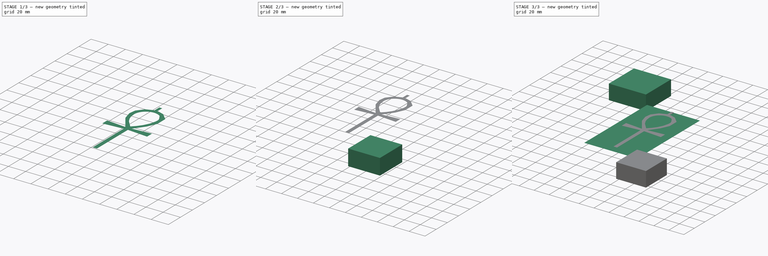
[diagram: build sequence overview — one tinted view per stage of 3, left to right]
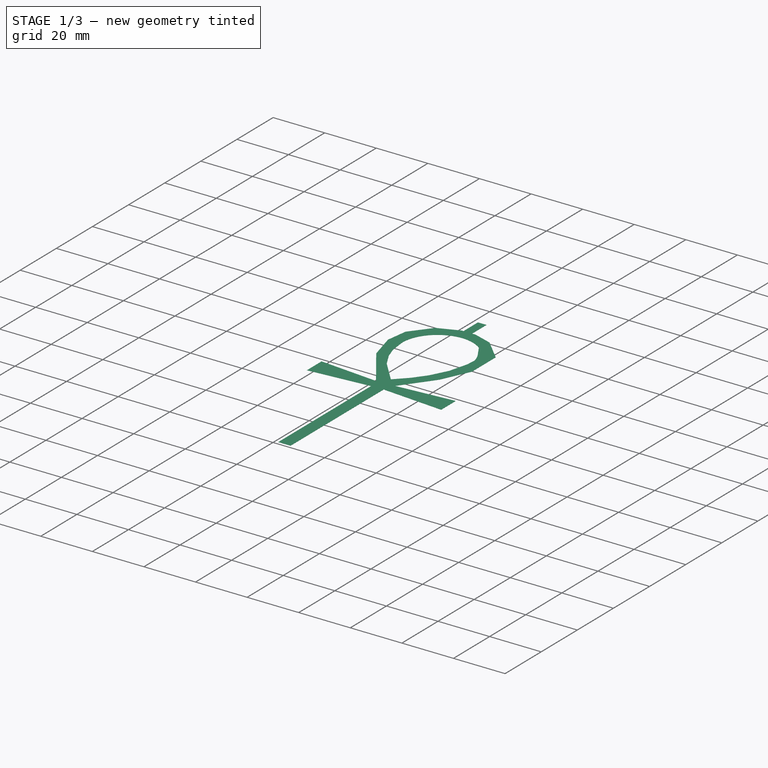
[diagram: stage 1 of 3 — iso view after this stage's code; geometry added in this stage tinted green]
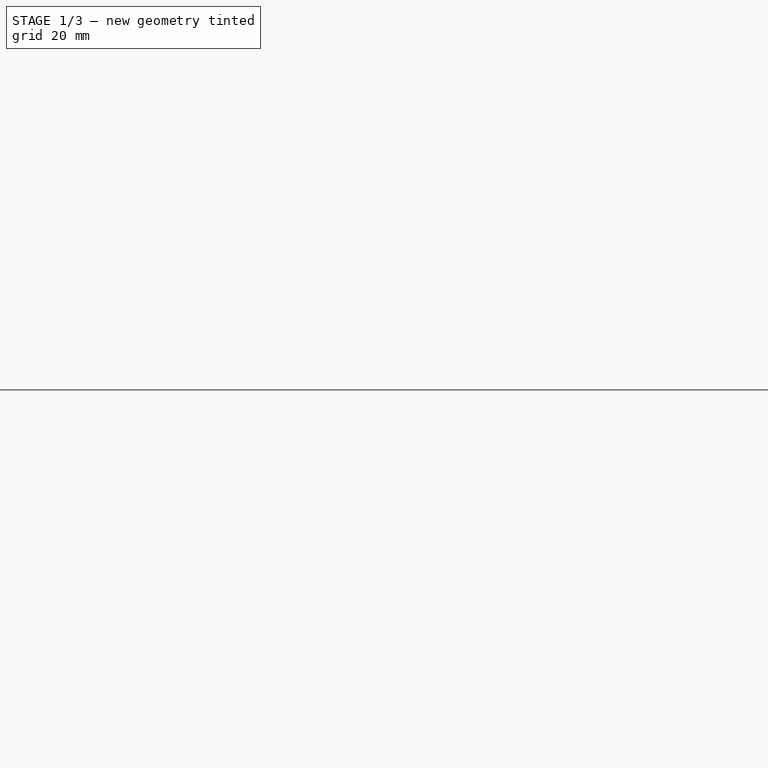
[diagram: stage 1 of 3 — front view after this stage's code; geometry added in this stage tinted green]
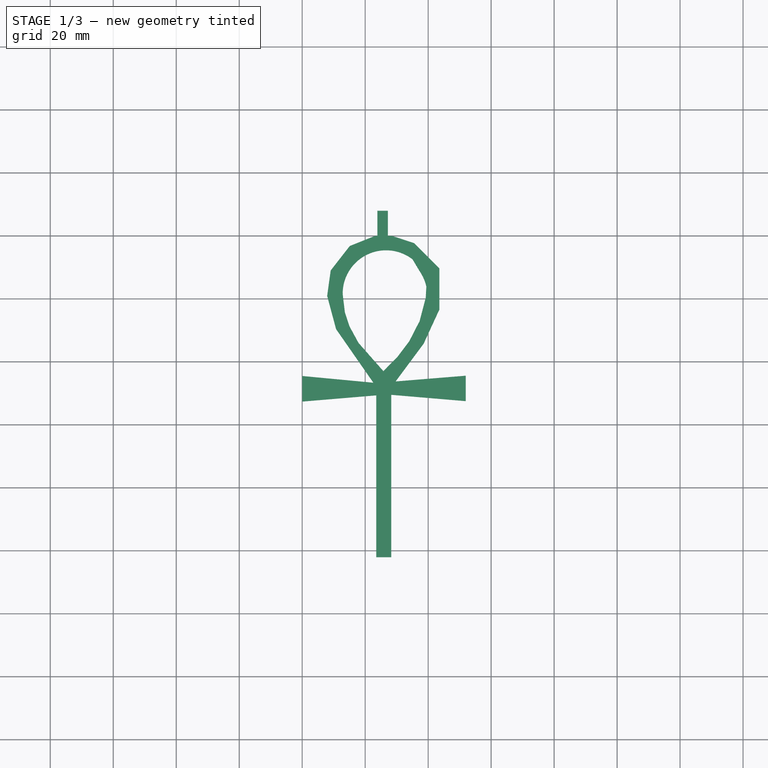
[diagram: stage 1 of 3 — top view after this stage's code; geometry added in this stage tinted green]
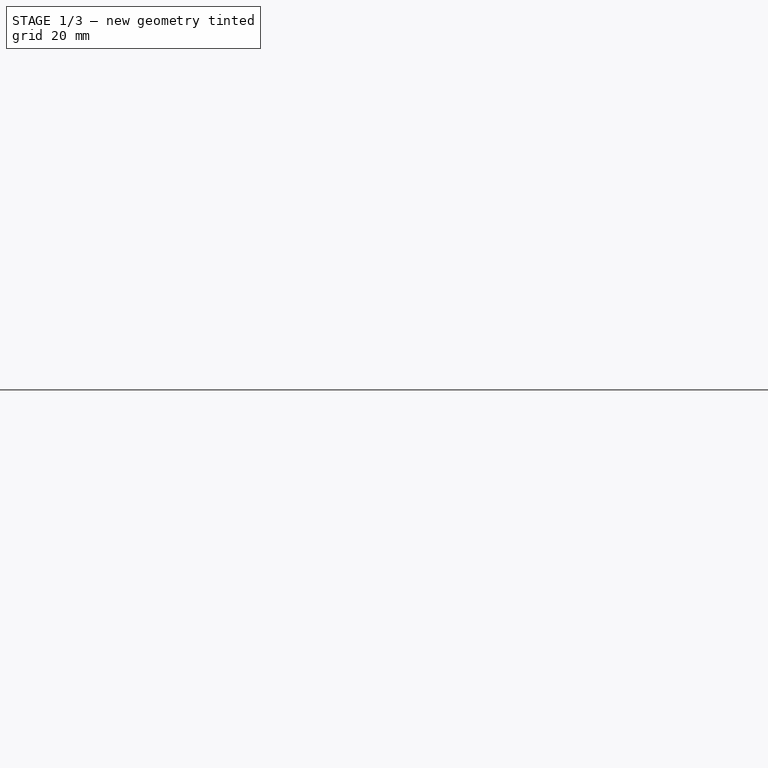
[diagram: stage 1 of 3 — right view after this stage's code; geometry added in this stage tinted green]
FCSTD DOCUMENT  (FreeCAD 0.18R16131 (Git))
Label: RhaCross
License: All rights reserved
LicenseURL: http://en.wikipedia.org/wiki/All_rights_reserved
objects: Sketcher::SketchObject×8, Part::Extrusion×7, Part::Feature×2, Part::Cut×1, Part::MultiFuse×1
note: 19 computed .brp shape members not serialized (recipe doc carries the construction recipe); baked Part::Feature solids carry a one-line shape summary decoded from their .brp

FEATURE [Sketcher::SketchObject] Sketch001
  sketch-geometry (4):
    g0: LineSegment StartX=-9.94408 StartY=9.92968 StartZ=0 EndX=60.5151 EndY=9.92968 EndZ=0
    g1: LineSegment StartX=60.5151 StartY=9.92968 StartZ=0 EndX=60.5151 EndY=-110.47 EndZ=0
    g2: LineSegment StartX=60.5151 StartY=-110.47 StartZ=0 EndX=-9.94408 EndY=-110.47 EndZ=0
    g3: LineSegment StartX=-9.94408 StartY=-110.47 StartZ=0 EndX=-9.94408 EndY=9.92968 EndZ=0
  constraints (8):
    c: Coincident(g0,g1)
    c: Coincident(g1,g2)
    c: Coincident(g2,g3)
    c: Coincident(g3,g0)
    c: Horizontal(g0)
    c: Horizontal(g2)
    c: Vertical(g1)
    c: Vertical(g3)
FEATURE [Part::Extrusion] Extrude001  label="substrate layer"
  Base = -> Sketch001
  Dir = (0,0,1)
  DirMode = 2
  FaceMakerClass = Part::FaceMakerBullseye
  LengthFwd = 0
  LengthRev = 1.5
  Solid = true
  Symmetric = false
FEATURE [Part::Extrusion] Extrude003  label="inPort"
  Base = -> Sketch
  Dir = (0,0,1)
  DirMode = 2
  FaceMakerClass = Part::FaceMakerBullseye
  LengthFwd = 0.035
  LengthRev = 0
  Solid = true
  Symmetric = false
FEATURE [Part::Feature] path4529001
  shape: bbox 51.85 x 102.3 x 2e-07 mm, 1 faces, 0 solids (baked)
FEATURE [Part::Feature] path4529002
  shape: bbox 26.77 x 38.2 x 2e-07 mm, 1 faces, 0 solids (baked)
FEATURE [Part::Cut] Cut  label="cross symbol"
  Base = -> path4529001
  Tool = -> path4529002
FEATURE [Sketcher::SketchObject] Sketch006
  sketch-geometry (35):
    g0: LineSegment StartX=23.4984 StartY=-102.062 StartZ=0 EndX=28.2739 EndY=-102.062 EndZ=0
    g1: LineSegment StartX=28.2739 StartY=-102.062 StartZ=0 EndX=28.2739 EndY=-50.4864 EndZ=0
    g2: LineSegment StartX=28.2739 StartY=-50.4864 StartZ=0 EndX=51.9493 EndY=-52.4985 EndZ=0
    g3: LineSegment StartX=51.9493 StartY=-52.4985 StartZ=0 EndX=51.9493 EndY=-44.4101 EndZ=0
    g4: LineSegment StartX=51.9493 StartY=-44.4101 StartZ=0 EndX=29.666 EndY=-46.2314 EndZ=0
    g5: LineSegment StartX=29.666 StartY=-46.2314 StartZ=0 EndX=38.5644 EndY=-34.2466 EndZ=0
    g6: LineSegment StartX=38.5644 StartY=-34.2466 StartZ=0 EndX=43.546 EndY=-23.4263 EndZ=0
    g7: LineSegment StartX=43.546 StartY=-23.4263 StartZ=0 EndX=43.546 EndY=-10.3028 EndZ=0
    g8: LineSegment StartX=43.546 StartY=-10.3028 StartZ=0 EndX=35.5647 EndY=-2.32148 EndZ=0
    g9: LineSegment StartX=35.5647 StartY=-2.32148 StartZ=0 EndX=28.5437 EndY=0 EndZ=0
    g10: LineSegment StartX=28.5437 StartY=0 StartZ=0 EndX=23.1336 EndY=0 EndZ=0
    g11: LineSegment StartX=23.1336 StartY=0 StartZ=0 EndX=15.0988 EndY=-3.2186 EndZ=0
    g12: LineSegment StartX=15.0988 StartY=-3.2186 StartZ=0 EndX=9.04586 EndY=-10.9856 EndZ=0
    g13: LineSegment StartX=9.04586 StartY=-10.9856 StartZ=0 EndX=7.92099 EndY=-19.074 EndZ=0
    g14: LineSegment StartX=7.92099 StartY=-19.074 StartZ=0 EndX=10.76 EndY=-29.6264 EndZ=0
    g15: LineSegment StartX=10.76 StartY=-29.6264 StartZ=0 EndX=22.5968 EndY=-46.6401 EndZ=0
    g16: LineSegment StartX=22.5968 StartY=-46.6401 StartZ=0 EndX=0 EndY=-44.4975 EndZ=0
    g17: LineSegment StartX=0 StartY=-44.4975 StartZ=0 EndX=0 EndY=-52.6394 EndZ=0
    g18: LineSegment StartX=0 StartY=-52.6394 StartZ=0 EndX=23.4984 EndY=-50.6659 EndZ=0
    g19: LineSegment StartX=23.4984 StartY=-50.6659 StartZ=0 EndX=23.4984 EndY=-102.062 EndZ=0
    g20: LineSegment StartX=12.9008 StartY=-18.8666 StartZ=0 EndX=13.548 EndY=-24.3062 EndZ=0
    g21: LineSegment StartX=13.548 StartY=-24.3062 StartZ=0 EndX=14.9943 EndY=-28.6986 EndZ=0
    g22: LineSegment StartX=14.9943 StartY=-28.6986 StartZ=0 EndX=17.8868 EndY=-34.0015 EndZ=0
    g23: LineSegment StartX=17.8868 StartY=-34.0015 StartZ=0 EndX=25.761 EndY=-42.947 EndZ=0
    g24: LineSegment StartX=25.761 StartY=-42.947 StartZ=0 EndX=30.3141 EndY=-38.3404 EndZ=0
    g25: LineSegment StartX=30.3141 StartY=-38.3404 StartZ=0 EndX=33.9565 EndY=-33.5195 EndZ=0
    g26: LineSegment StartX=33.9565 StartY=-33.5195 StartZ=0 EndX=37.2776 EndY=-27.0916 EndZ=0
    g27: LineSegment StartX=37.2776 StartY=-27.0916 StartZ=0 EndX=39.2215 EndY=-19.6805 EndZ=0
    g28: LineSegment StartX=39.2215 StartY=-19.6805 StartZ=0 EndX=39.3173 EndY=-17.9816 EndZ=0
    g29: ArcOfCircle CenterX=26.618 CenterY=-18.3604 CenterZ=0 NormalX=0 NormalY=0 NormalZ=1 AngleXU=0 Radius=13.7715 StartAngle=0.912129 EndAngle=3.11436
    g30: ArcOfCircle CenterX=25.9923 CenterY=-19.064 CenterZ=0 NormalX=0 NormalY=0 NormalZ=1 AngleXU=0 Radius=13.7437 StartAngle=0.214422 EndAngle=0.592394
    g31: LineSegment StartX=39.3173 StartY=-17.9816 StartZ=0 EndX=39.4212 EndY=-16.1396 EndZ=0
    g32: LineSegment StartX=35.9332 StartY=-8.95112 StartZ=0 EndX=37.3941 EndY=-11.3902 EndZ=0
    g33: LineSegment StartX=35.9332 StartY=-8.95112 StartZ=0 EndX=35.047 EndY=-7.46981 EndZ=0
    g34: LineSegment StartX=12.9008 StartY=-18.8666 StartZ=0 EndX=12.8517 EndY=-17.9854 EndZ=0
  constraints (45):
    c: Horizontal(g0)
    c: Coincident(g0,g1)
    c: Vertical(g1)
    c: Coincident(g1,g2)
    c: Coincident(g2,g3)
    c: Vertical(g3)
    c: Coincident(g3,g4)
    c: Coincident(g4,g5)
    c: Coincident(g5,g6)
    c: Coincident(g6,g7)
    c: Vertical(g7)
    c: Coincident(g7,g8)
    c: Coincident(g8,g9)
    c: Coincident(g9,g10)
    c: PointOnObject(g10,g-1)
    c: Horizontal(g10)
    c: Coincident(g10,g11)
    c: Coincident(g11,g12)
    c: Coincident(g12,g13)
    c: Coincident(g13,g14)
    c: Coincident(g14,g15)
    c: Coincident(g15,g16)
    c: PointOnObject(g16,g-2)
    c: Coincident(g16,g17)
    c: PointOnObject(g17,g-2)
    c: Coincident(g17,g18)
    c: Coincident(g18,g19)
    c: Coincident(g19,g0)
    c: Vertical(g19)
    c: Coincident(g20,g21)
    c: Coincident(g21,g22)
    c: Coincident(g22,g23)
    c: Coincident(g23,g24)
    c: Coincident(g24,g25)
    c: Coincident(g25,g26)
    c: Coincident(g26,g27)
    c: Coincident(g27,g28)
    c: PointOnObject(g30,g28)
    c: Coincident(g31,g28)
    c: Coincident(g31,g30)
    c: Coincident(g32,g30)
    c: Coincident(g33,g32)
    c: Coincident(g33,g29)
    c: Coincident(g34,g20)
    c: Coincident(g34,g29)
FEATURE [Part::Extrusion] Extrude  label="cross2"
  Base = -> Sketch006
  Dir = (0,0,1)
  DirMode = 2
  FaceMakerClass = Part::FaceMakerBullseye
  LengthFwd = 0.035
  LengthRev = 0
  Solid = true
  Symmetric = false
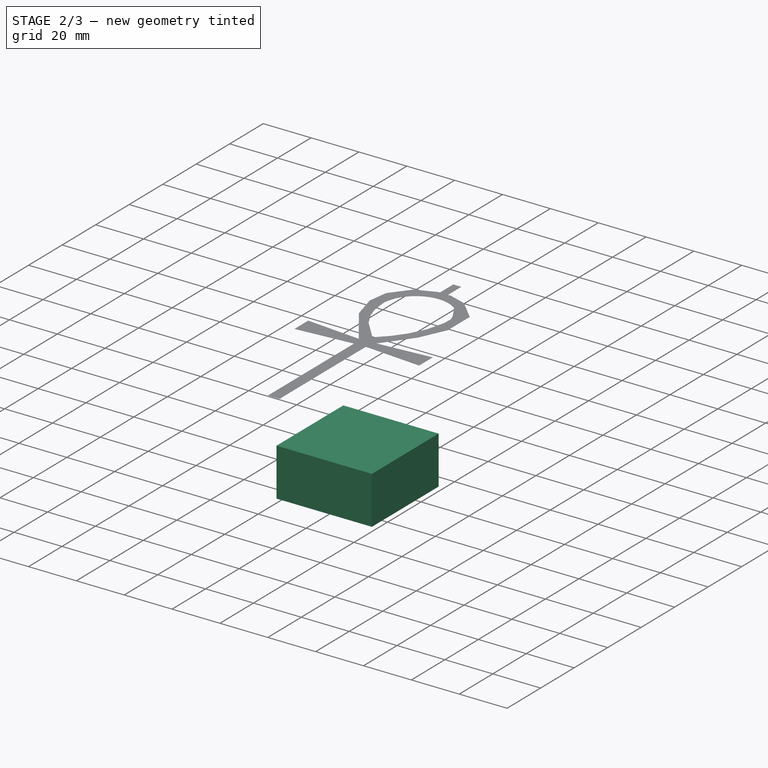
[diagram: stage 2 of 3 — iso view after this stage's code; geometry added in this stage tinted green]
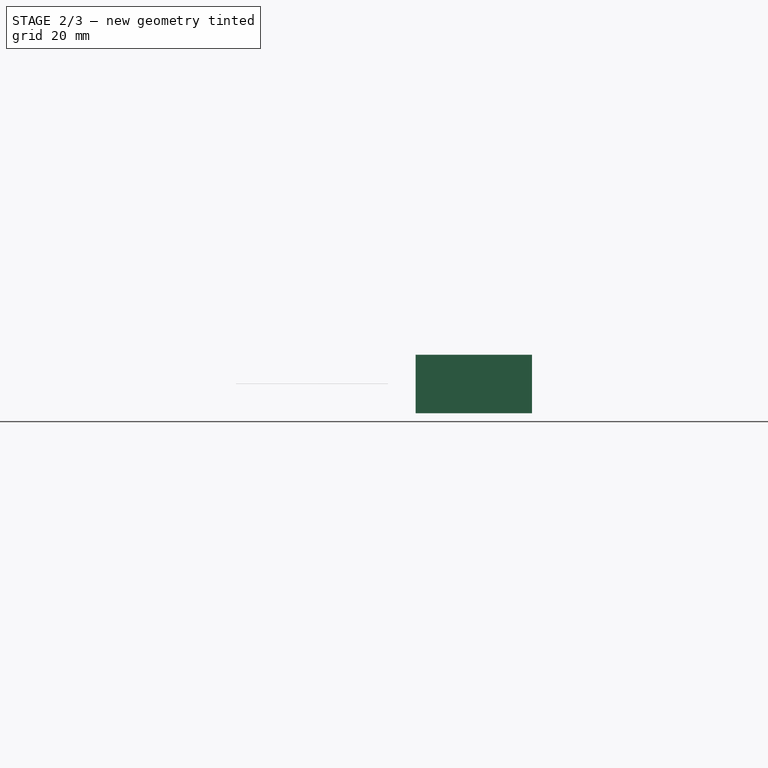
[diagram: stage 2 of 3 — front view after this stage's code; geometry added in this stage tinted green]
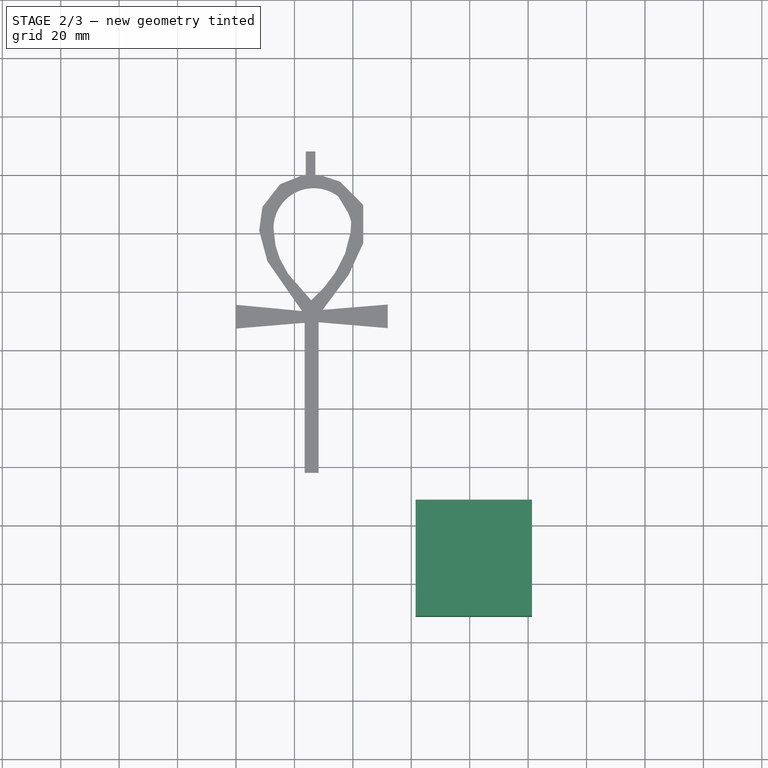
[diagram: stage 2 of 3 — top view after this stage's code; geometry added in this stage tinted green]
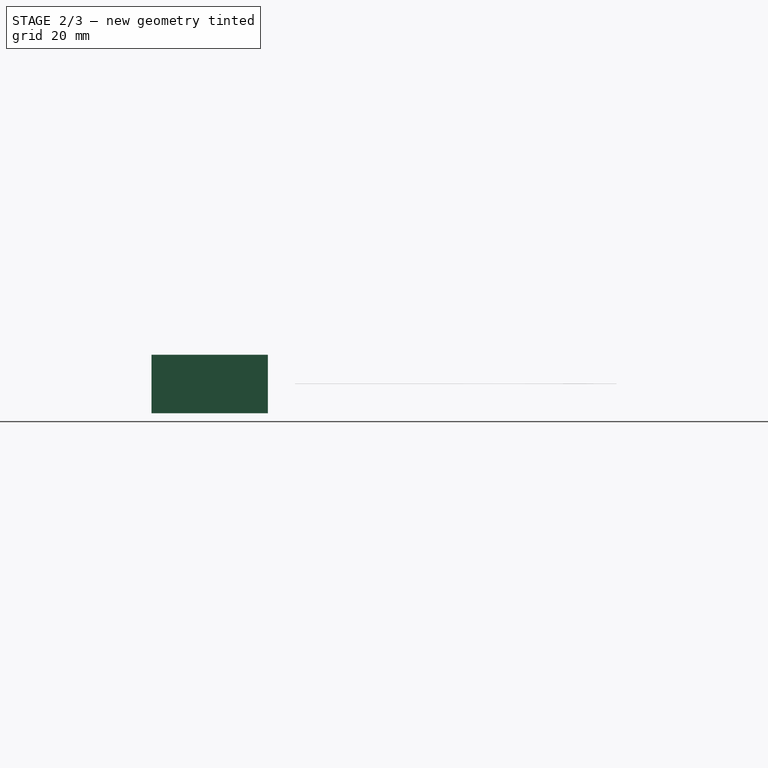
[diagram: stage 2 of 3 — right view after this stage's code; geometry added in this stage tinted green]
FEATURE [Sketcher::SketchObject] Sketch005
  Placement = pos=(0,0,-10) rot=(0,0,1;0rad)
  sketch-geometry (4):
    g0: LineSegment StartX=61.4883 StartY=-111.366 StartZ=0 EndX=101.325 EndY=-111.366 EndZ=0
    g1: LineSegment StartX=101.325 StartY=-111.366 StartZ=0 EndX=101.325 EndY=-151.203 EndZ=0
    g2: LineSegment StartX=101.325 StartY=-151.203 StartZ=0 EndX=61.4883 EndY=-151.203 EndZ=0
    g3: LineSegment StartX=61.4883 StartY=-151.203 StartZ=0 EndX=61.4883 EndY=-111.366 EndZ=0
  constraints (8):
    c: Coincident(g0,g1)
    c: Coincident(g1,g2)
    c: Coincident(g2,g3)
    c: Coincident(g3,g0)
    c: Horizontal(g0)
    c: Horizontal(g2)
    c: Vertical(g1)
    c: Vertical(g3)
FEATURE [Part::Extrusion] Extrude006  label="air2"
  Base = -> Sketch005
  Dir = (0,0,1)
  DirMode = 2
  FaceMakerClass = Part::FaceMakerBullseye
  LengthFwd = 20
  LengthRev = 0
  Solid = true
  Symmetric = false
FEATURE [Part::MultiFuse] Fusion  label="copper layer"
  Shapes = -> [Extrude,Extrude003]
FEATURE [Sketcher::SketchObject] Sketch007  label="dump field layer"
  Placement = pos=(0,0,2) rot=(0,0,1;0rad)
  sketch-geometry (4):
    g0: LineSegment StartX=-9.98383 StartY=9.48747 StartZ=0 EndX=60.4424 EndY=9.48747 EndZ=0
    g1: LineSegment StartX=60.4424 StartY=9.48747 StartZ=0 EndX=60.4424 EndY=-110.557 EndZ=0
    g2: LineSegment StartX=60.4424 StartY=-110.557 StartZ=0 EndX=-9.98383 EndY=-110.557 EndZ=0
    g3: LineSegment StartX=-9.98383 StartY=-110.557 StartZ=0 EndX=-9.98383 EndY=9.48747 EndZ=0
  constraints (8):
    c: Coincident(g0,g1)
    c: Coincident(g1,g2)
    c: Coincident(g2,g3)
    c: Coincident(g3,g0)
    c: Horizontal(g0)
    c: Horizontal(g2)
    c: Vertical(g1)
    c: Vertical(g3)
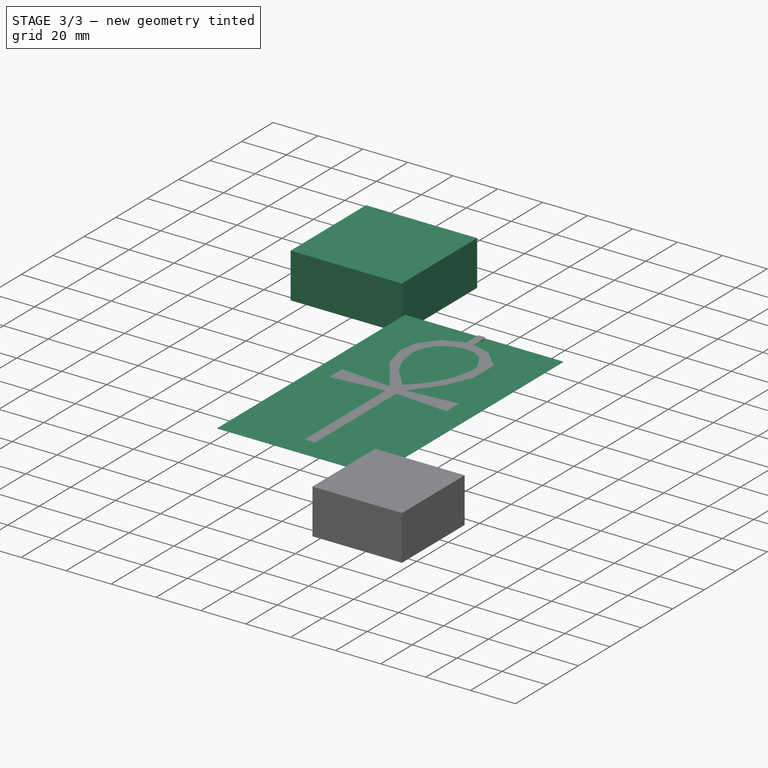
[diagram: stage 3 of 3 — iso view after this stage's code; geometry added in this stage tinted green]
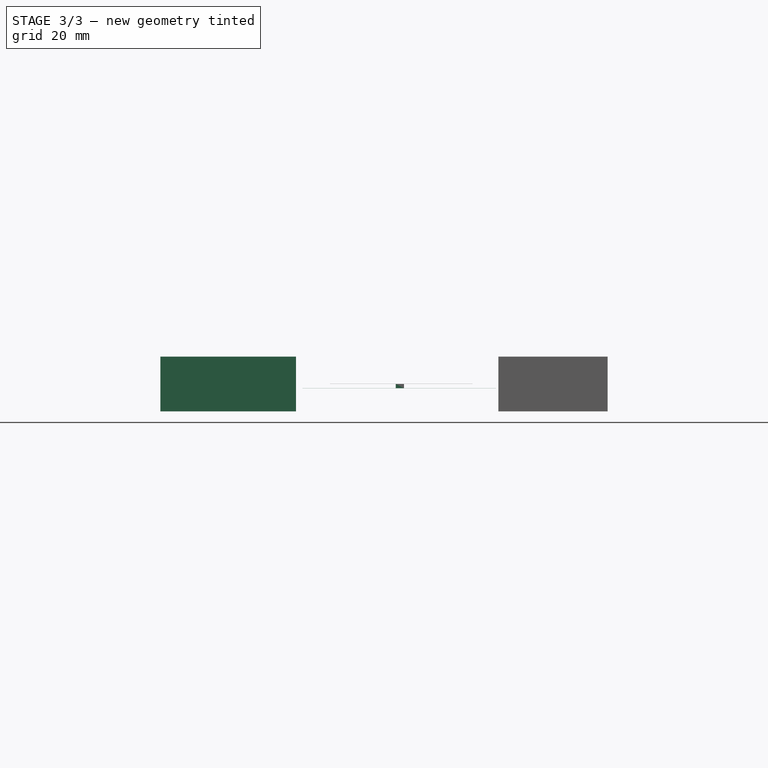
[diagram: stage 3 of 3 — front view after this stage's code; geometry added in this stage tinted green]
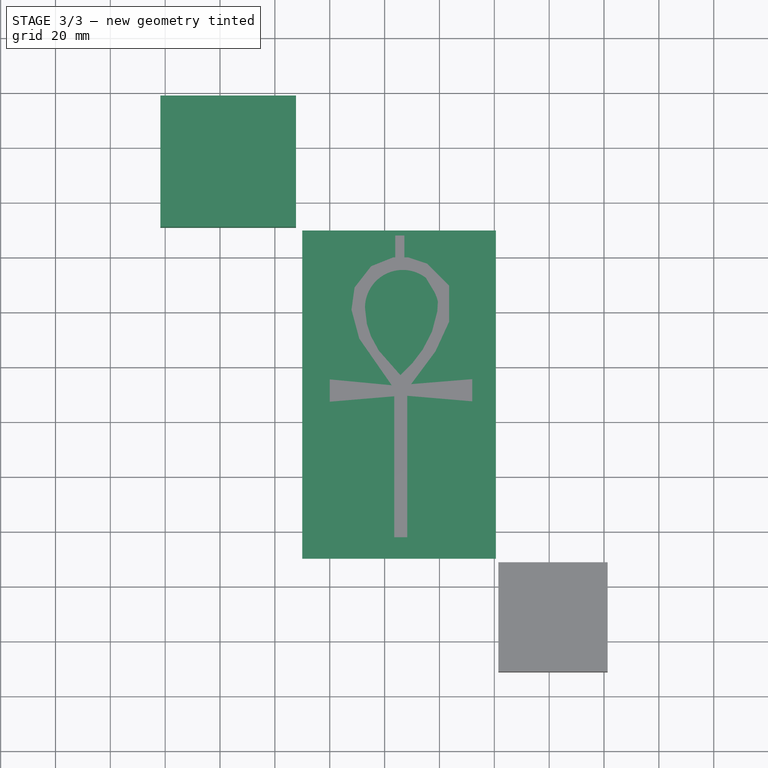
[diagram: stage 3 of 3 — top view after this stage's code; geometry added in this stage tinted green]
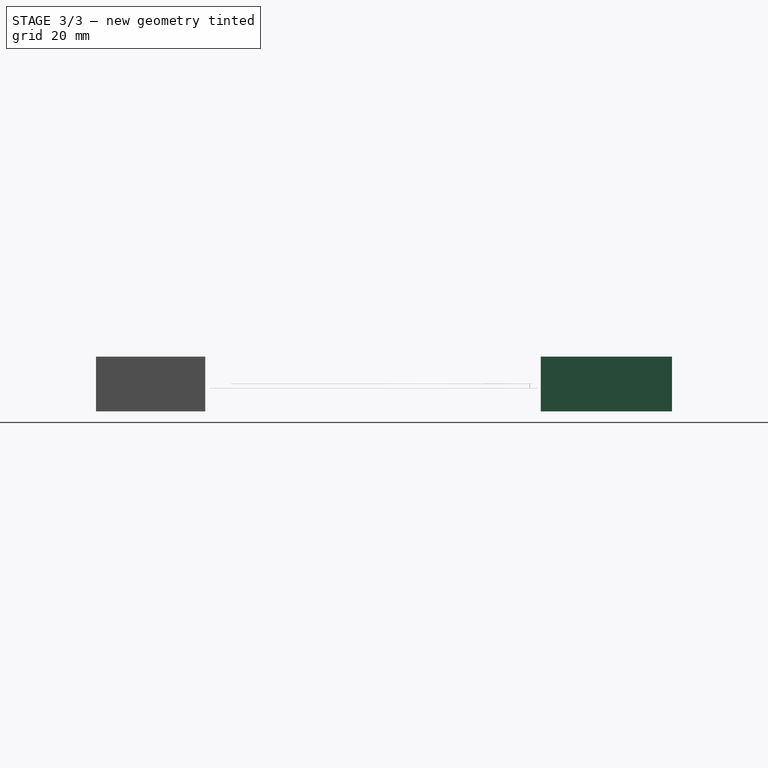
[diagram: stage 3 of 3 — right view after this stage's code; geometry added in this stage tinted green]
FEATURE [Sketcher::SketchObject] Sketch002
  Placement = pos=(0,0,-1.5) rot=(0,0,1;0rad)
  sketch-geometry (4):
    g0: LineSegment StartX=-10.0185 StartY=9.79907 StartZ=0 EndX=60.5855 EndY=9.79907 EndZ=0
    g1: LineSegment StartX=60.5855 StartY=9.79907 StartZ=0 EndX=60.5855 EndY=-109.89 EndZ=0
    g2: LineSegment StartX=60.5855 StartY=-109.89 StartZ=0 EndX=-10.0185 EndY=-109.89 EndZ=0
    g3: LineSegment StartX=-10.0185 StartY=-109.89 StartZ=0 EndX=-10.0185 EndY=9.79907 EndZ=0
  constraints (8):
    c: Coincident(g0,g1)
    c: Coincident(g1,g2)
    c: Coincident(g2,g3)
    c: Coincident(g3,g0)
    c: Horizontal(g0)
    c: Horizontal(g2)
    c: Vertical(g1)
    c: Vertical(g3)
FEATURE [Part::Extrusion] Extrude002  label="gnd layer"
  Base = -> Sketch002
  Dir = (0,0,1)
  DirMode = 2
  FaceMakerClass = Part::FaceMakerBullseye
  LengthFwd = 0
  LengthRev = 0.035
  Solid = true
  Symmetric = false
FEATURE [Sketcher::SketchObject] Sketch
  MapMode = 5
  Placement = pos=(0,0,-2e-16) rot=(0,0,1;0rad)
  Support = -> [Extrude001]
  sketch-geometry (4):
    g0: LineSegment StartX=23.8698 StartY=-0.935184 StartZ=0 EndX=27.1918 EndY=-0.935184 EndZ=0
    g1: LineSegment StartX=27.1918 StartY=-0.935184 StartZ=0 EndX=27.1918 EndY=7.96954 EndZ=0
    g2: LineSegment StartX=27.1918 StartY=7.96954 StartZ=0 EndX=23.8698 EndY=7.96954 EndZ=0
    g3: LineSegment StartX=23.8698 StartY=7.96954 StartZ=0 EndX=23.8698 EndY=-0.935184 EndZ=0
  constraints (9):
    c: Coincident(g0,g1)
    c: Coincident(g1,g2)
    c: Coincident(g2,g3)
    c: Coincident(g3,g0)
    c: Horizontal(g0)
    c: Horizontal(g2)
    c: Vertical(g1)
    c: Vertical(g3)
    c: Distance(g2) = 3.322  '50ohm@1.6GHz microstrip in'
FEATURE [Sketcher::SketchObject] Sketch004
  Placement = pos=(0,0,-10) rot=(0,0,1;0rad)
  sketch-geometry (4):
    g0: LineSegment StartX=-12.2879 StartY=10.9445 StartZ=0 EndX=-61.7628 EndY=10.9445 EndZ=0
    g1: LineSegment StartX=-61.7628 StartY=10.9445 StartZ=0 EndX=-61.7628 EndY=58.8362 EndZ=0
    g2: LineSegment StartX=-61.7628 StartY=58.8362 StartZ=0 EndX=-12.2879 EndY=58.8362 EndZ=0
    g3: LineSegment StartX=-12.2879 StartY=58.8362 StartZ=0 EndX=-12.2879 EndY=10.9445 EndZ=0
  constraints (8):
    c: Coincident(g0,g1)
    c: Coincident(g1,g2)
    c: Coincident(g2,g3)
    c: Coincident(g3,g0)
    c: Horizontal(g0)
    c: Horizontal(g2)
    c: Vertical(g1)
    c: Vertical(g3)
FEATURE [Part::Extrusion] Extrude005  label="air1"
  Base = -> Sketch004
  Dir = (0,0,1)
  DirMode = 2
  FaceMakerClass = Part::FaceMakerBullseye
  LengthFwd = 20
  LengthRev = 0
  Solid = true
  Symmetric = false
FEATURE [Sketcher::SketchObject] Sketch003
  MapMode = 5
  Placement = pos=(0,7.96954,0) rot=(0,0.707107,0.707107;3.14159rad)
  Support = -> [Extrude003]
  sketch-geometry (4):
    g0: LineSegment StartX=-27.0726 StartY=0.034852 StartZ=0 EndX=-24.061 EndY=0.034852 EndZ=0
    g1: LineSegment StartX=-24.061 StartY=0.034852 StartZ=0 EndX=-24.061 EndY=-1.53514 EndZ=0
    g2: LineSegment StartX=-24.061 StartY=-1.53514 StartZ=0 EndX=-27.0726 EndY=-1.53514 EndZ=0
    g3: LineSegment StartX=-27.0726 StartY=-1.53514 StartZ=0 EndX=-27.0726 EndY=0.034852 EndZ=0
  constraints (8):
    c: Coincident(g0,g1)
    c: Coincident(g1,g2)
    c: Coincident(g2,g3)
    c: Coincident(g3,g0)
    c: Horizontal(g0)
    c: Horizontal(g2)
    c: Vertical(g1)
    c: Vertical(g3)
FEATURE [Part::Extrusion] Extrude004  label="in excitation"
  Base = -> Sketch003
  Dir = (0,1,-2e-16)
  DirMode = 2
  FaceMakerClass = Part::FaceMakerBullseye
  LengthFwd = 0
  LengthRev = 0.1
  Placement = pos=(0,-1,0) rot=(0,0,1;0rad)
  Solid = true
  Symmetric = false
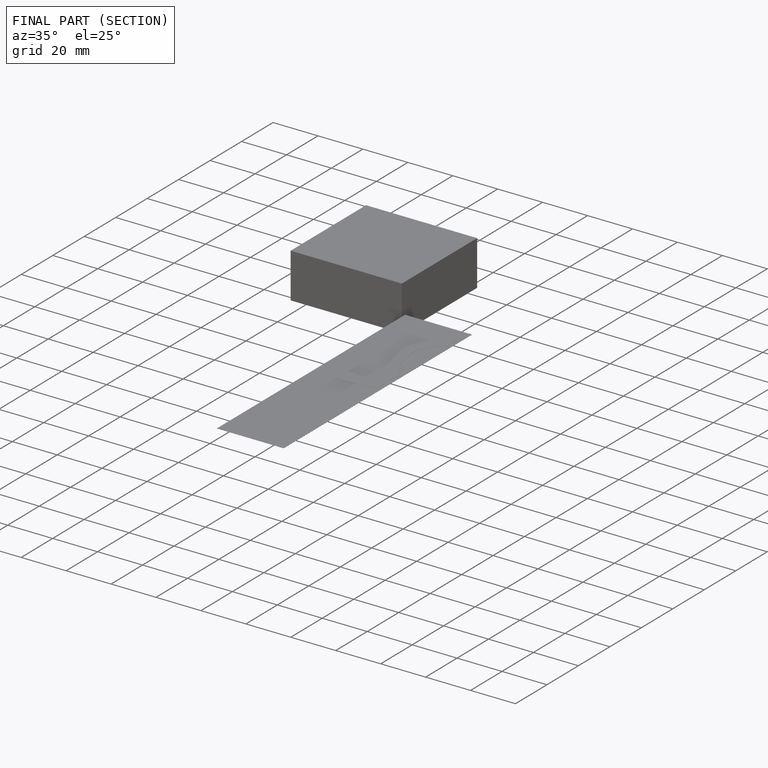
[diagram: finished part — half-section view (interior)]
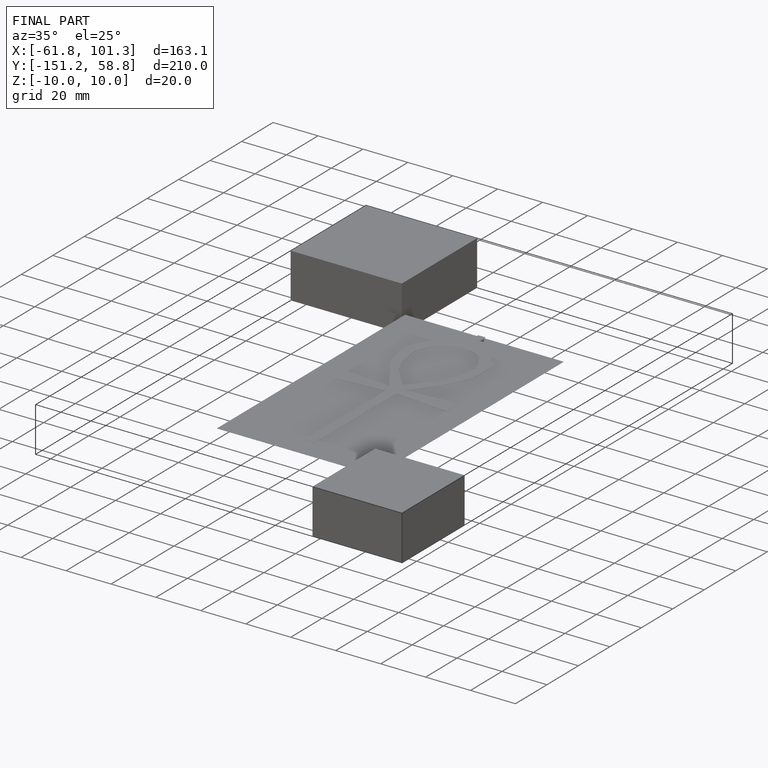
[diagram: finished part — iso view with bounding-box wireframe]
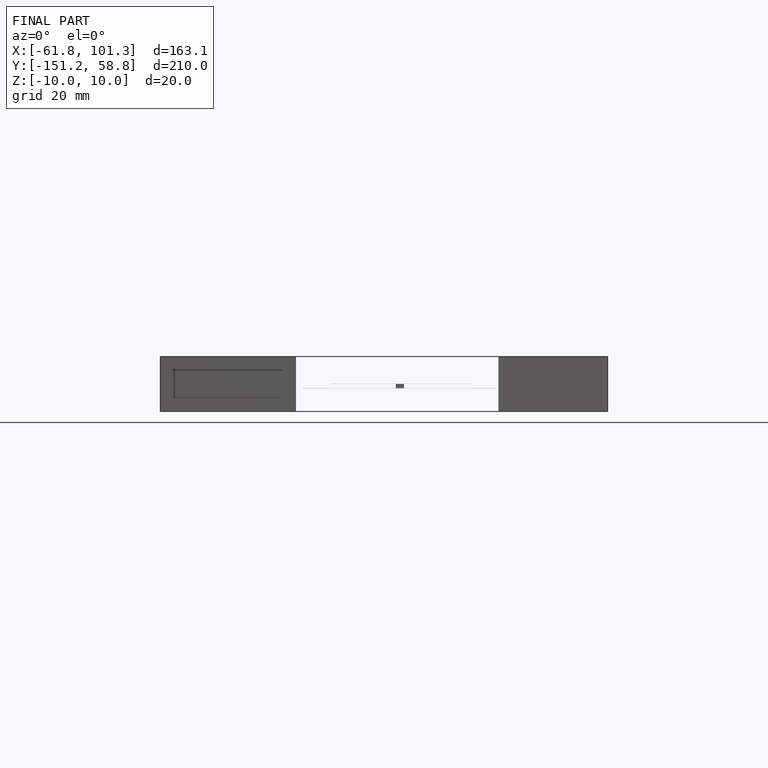
[diagram: finished part — front view with bounding-box wireframe]
